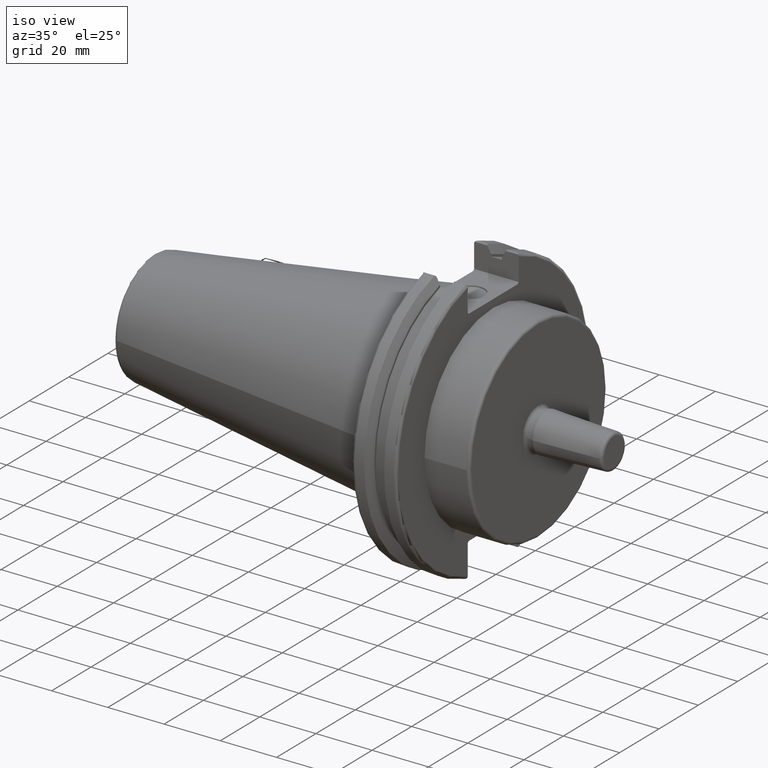
[diagram: clean part render]
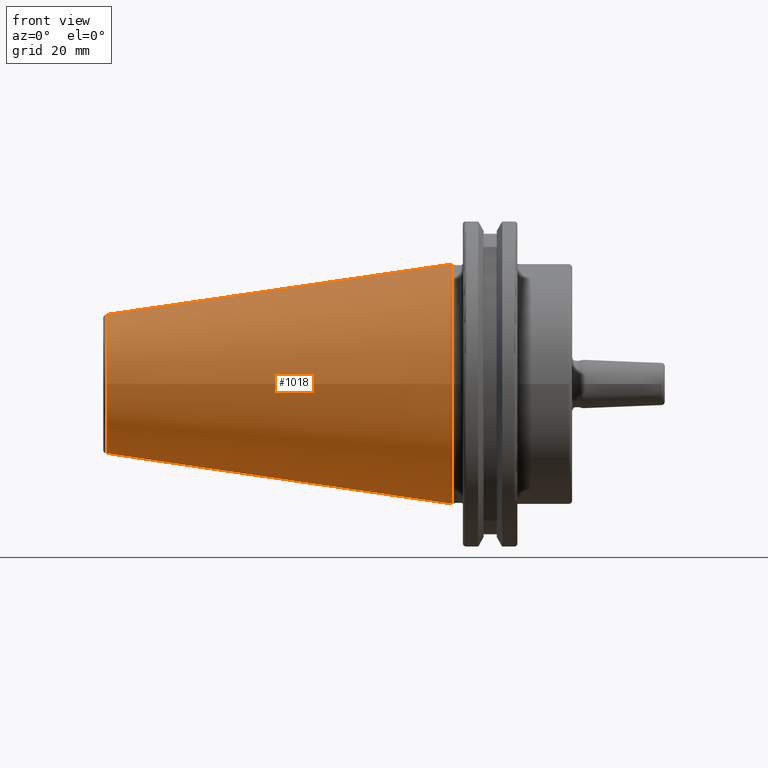
[diagram: tour spotlight — one face highlighted and labeled with its STEP entity id]
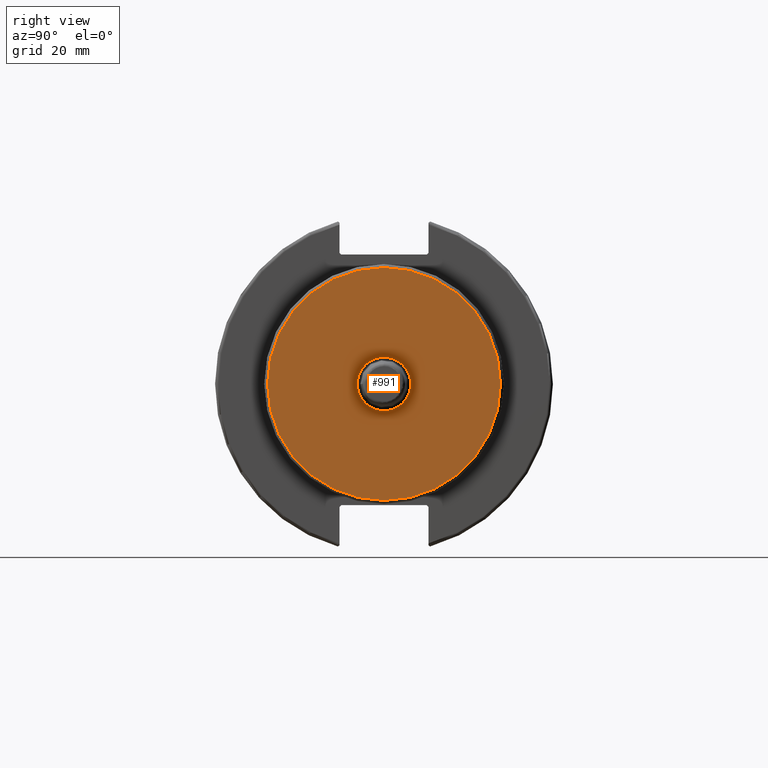
[diagram: tour spotlight — one face highlighted and labeled with its STEP entity id]
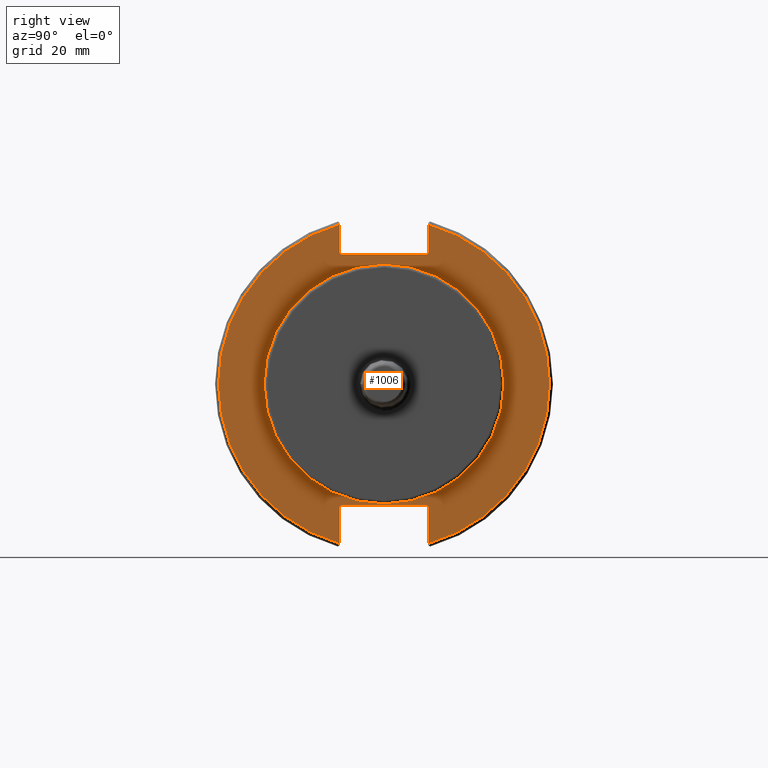
[diagram: tour spotlight — one face highlighted and labeled with its STEP entity id]
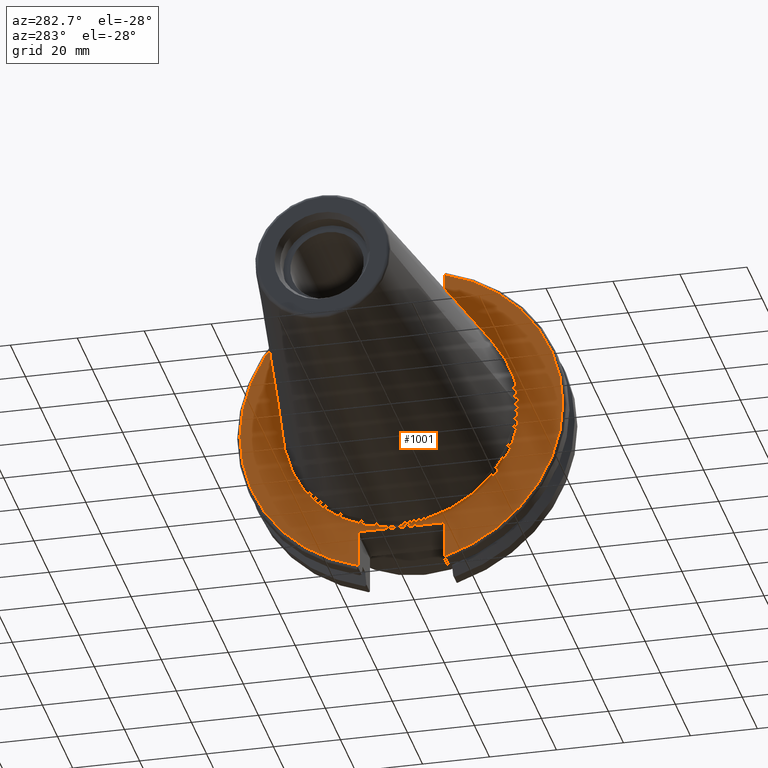
[diagram: tour spotlight — one face highlighted and labeled with its STEP entity id]
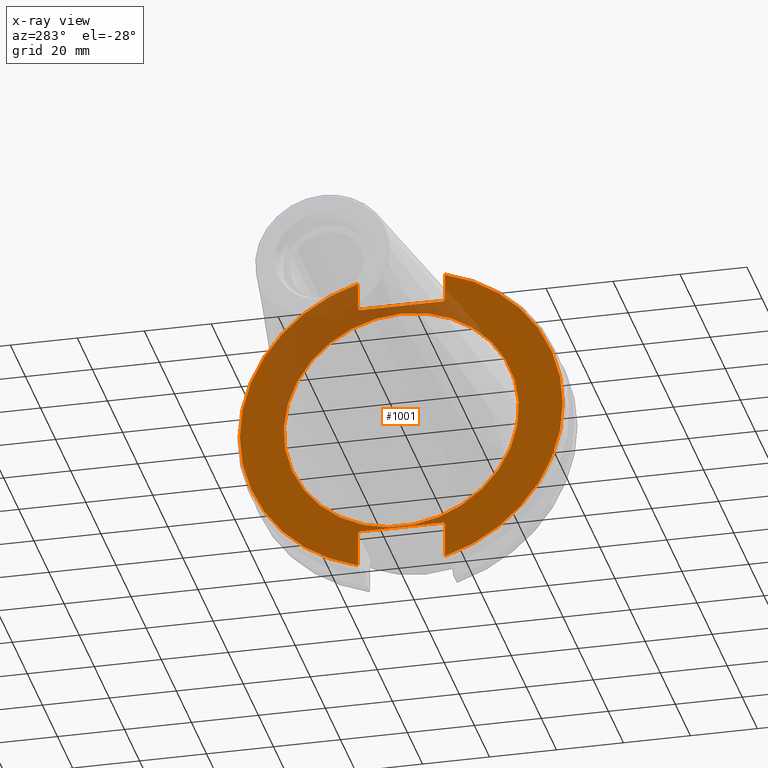
[diagram: x-ray of the same camera — body ghosted, this tour face saturated]
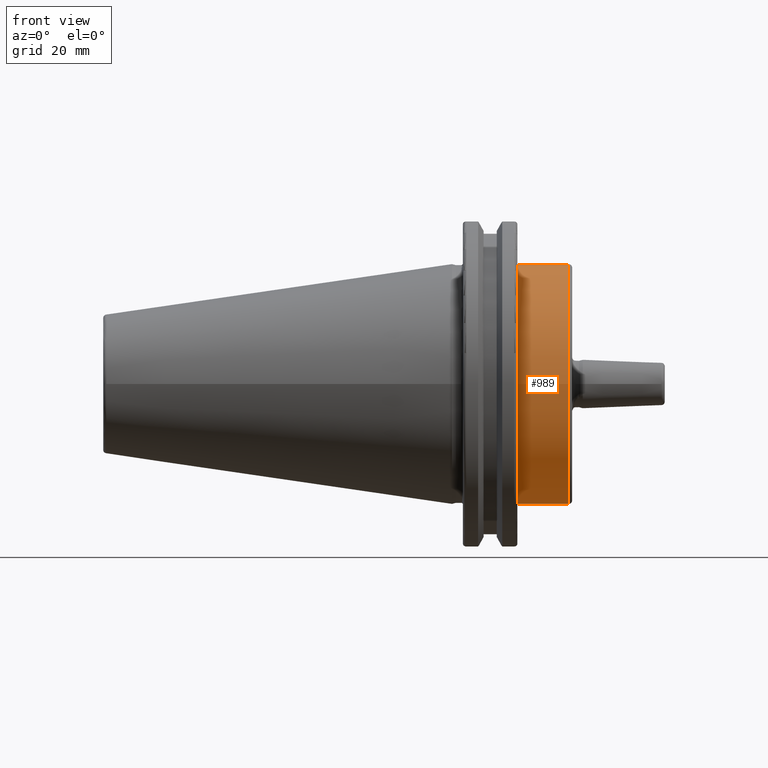
[diagram: tour spotlight — one face highlighted and labeled with its STEP entity id]
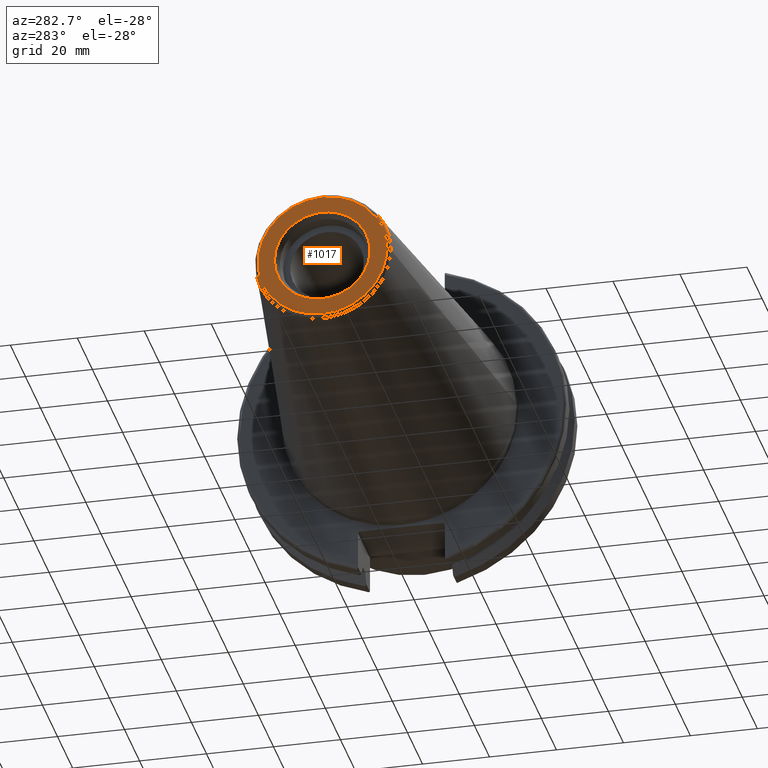
[diagram: tour spotlight — one face highlighted and labeled with its STEP entity id]
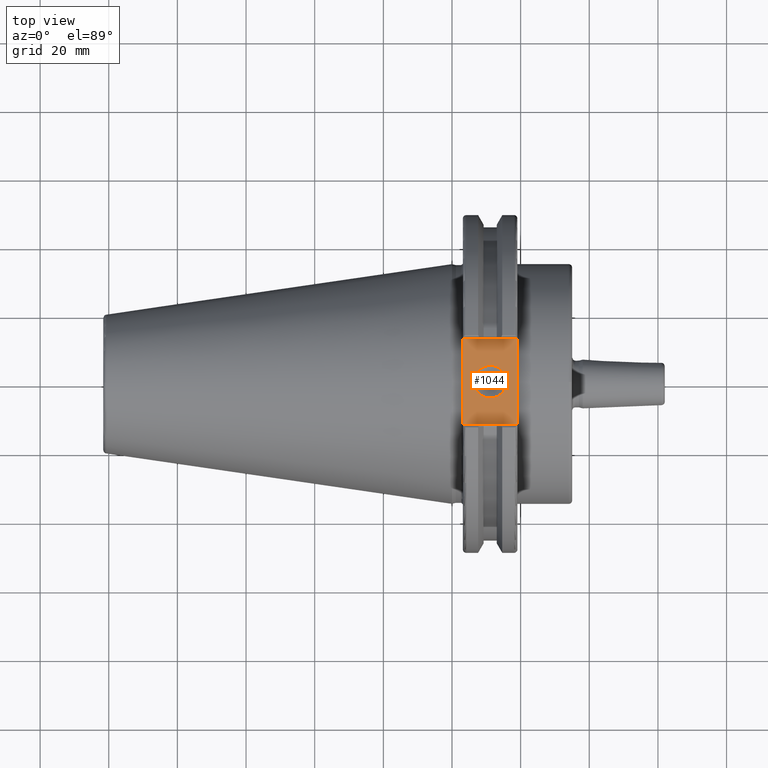
[diagram: tour spotlight — one face highlighted and labeled with its STEP entity id]
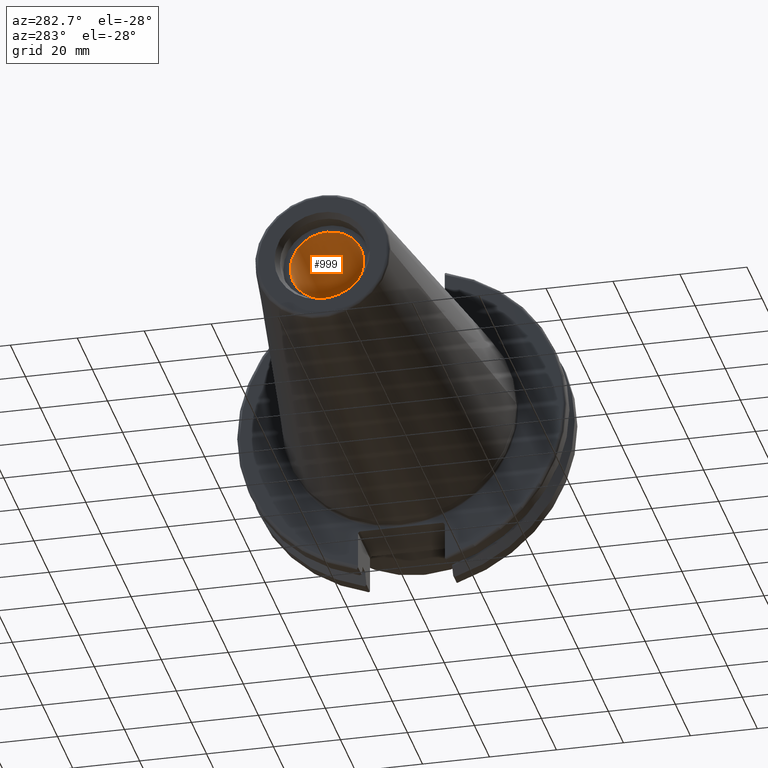
[diagram: tour spotlight — one face highlighted and labeled with its STEP entity id]
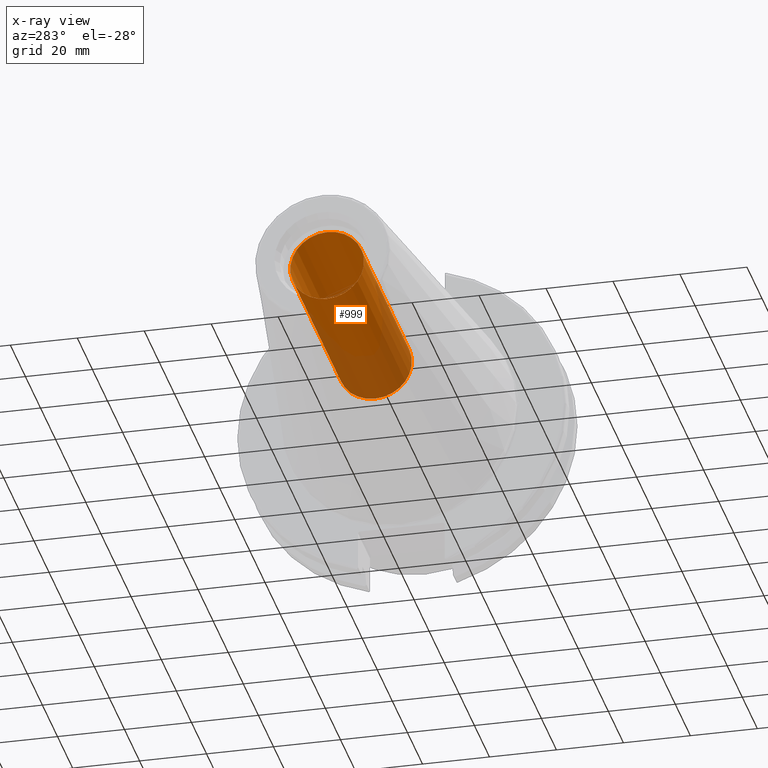
[diagram: x-ray of the same camera — body ghosted, this tour face saturated]
A machine part: a face-by-face anatomy tour. The part has 60 B-rep faces; the first image is the clean iso view, then the 8 largest visible faces are spotlighted one at a time (largest first), each with its STEP entity span.

Face 1 — front view, entity #1018. In plain terms, the highlighted conical surface has half-angle 8.297 deg.
Definition (entity closure, byte-faithful):
#50=CONICAL_SURFACE('',#1137,27.5166666666666,0.14481249823894);
#130=FACE_OUTER_BOUND('',#194,.T.);
#194=EDGE_LOOP('',(#838,#839,#840,#841,#842));
#276=LINE('',#1824,#345);
#345=VECTOR('',#1369,27.5166666666666);
#396=CIRCLE('',#1131,20.233121911427);
#397=CIRCLE('',#1132,20.233121911427);
#401=CIRCLE('',#1138,34.925);
#498=VERTEX_POINT('',#1811);
#499=VERTEX_POINT('',#1812);
#502=VERTEX_POINT('',#1822);
#624=EDGE_CURVE('',#498,#499,#396,.T.);
#625=EDGE_CURVE('',#499,#498,#397,.T.);
#629=EDGE_CURVE('',#502,#502,#401,.T.);
#630=EDGE_CURVE('',#502,#499,#276,.T.);
#838=ORIENTED_EDGE('',*,*,#629,.F.);
#839=ORIENTED_EDGE('',*,*,#630,.T.);
#840=ORIENTED_EDGE('',*,*,#624,.F.);
#841=ORIENTED_EDGE('',*,*,#625,.F.);
#842=ORIENTED_EDGE('',*,*,#630,.F.);
#1018=ADVANCED_FACE('',(#130),#50,.T.);
#1131=AXIS2_PLACEMENT_3D('',#1813,#1353,#1354);
#1132=AXIS2_PLACEMENT_3D('',#1814,#1355,#1356);
#1137=AXIS2_PLACEMENT_3D('',#1821,#1365,#1366);
#1138=AXIS2_PLACEMENT_3D('',#1823,#1367,#1368);
#1353=DIRECTION('center_axis',(-1.,0.,0.));
#1354=DIRECTION('ref_axis',(0.,-1.,3.06161699786838E-17));
#1355=DIRECTION('center_axis',(-1.,0.,0.));
#1356=DIRECTION('ref_axis',(0.,-1.,3.06161699786838E-17));
#1365=DIRECTION('center_axis',(1.,0.,0.));
#1366=DIRECTION('ref_axis',(0.,1.,0.));
#1367=DIRECTION('center_axis',(1.,0.,0.));
#1368=DIRECTION('ref_axis',(0.,0.,-1.));
#1369=DIRECTION('',(-0.989532981063281,0.144306893071729,1.76724974695192E-17));
#1811=CARTESIAN_POINT('',(-100.744306893072,-2.47784279855872E-15,20.233121911427));
#1812=CARTESIAN_POINT('',(-100.744306893072,-20.233121911427,-2.47784279855872E-15));
#1813=CARTESIAN_POINT('Origin',(-100.744306893072,0.,-3.09730349819841E-15));
#1814=CARTESIAN_POINT('Origin',(-100.744306893072,0.,-3.09730349819841E-15));
#1821=CARTESIAN_POINT('Origin',(-50.8,0.,0.));
#1822=CARTESIAN_POINT('',(-8.88178419700125E-15,-34.925,-4.27707894602213E-15));
#1823=CARTESIAN_POINT('Origin',(0.,0.,0.));
#1824=CARTESIAN_POINT('',(-50.8,-27.5166666666666,-3.3698197756538E-15));

Face 2 — right view, entity #991. In plain terms, the highlighted planar face has unit normal (1, 0, 0).
Definition (entity closure, byte-faithful):
#58=FACE_BOUND('',#164,.T.);
#64=PLANE('',#1079);
#103=FACE_OUTER_BOUND('',#163,.T.);
#163=EDGE_LOOP('',(#681));
#164=EDGE_LOOP('',(#682));
#368=CIRCLE('',#1077,33.925);
#370=CIRCLE('',#1080,7.7995);
#420=VERTEX_POINT('',#1489);
#421=VERTEX_POINT('',#1493);
#522=EDGE_CURVE('',#420,#420,#368,.T.);
#524=EDGE_CURVE('',#421,#421,#370,.T.);
#681=ORIENTED_EDGE('',*,*,#522,.T.);
#682=ORIENTED_EDGE('',*,*,#524,.F.);
#991=ADVANCED_FACE('',(#103,#58),#64,.T.);
#1077=AXIS2_PLACEMENT_3D('',#1490,#1197,#1198);
#1079=AXIS2_PLACEMENT_3D('',#1492,#1201,#1202);
#1080=AXIS2_PLACEMENT_3D('',#1494,#1203,#1204);
#1197=DIRECTION('center_axis',(1.,0.,0.));
#1198=DIRECTION('ref_axis',(0.,0.,-1.));
#1201=DIRECTION('center_axis',(1.,0.,0.));
#1202=DIRECTION('ref_axis',(0.,0.,-1.));
#1203=DIRECTION('center_axis',(1.,0.,0.));
#1204=DIRECTION('ref_axis',(0.,0.,-1.));
#1489=CARTESIAN_POINT('',(35.,-4.15461426610739E-15,33.925));
#1490=CARTESIAN_POINT('Origin',(35.,0.,0.));
#1492=CARTESIAN_POINT('Origin',(35.,7.7995,0.));
#1493=CARTESIAN_POINT('',(35.,-9.55163270994979E-16,7.7995));
#1494=CARTESIAN_POINT('Origin',(35.,0.,0.));

Face 3 — right view, entity #1006. In plain terms, the highlighted planar face has unit normal (1, 0, 0).
Definition (entity closure, byte-faithful):
#60=FACE_BOUND('',#181,.T.);
#69=PLANE('',#1115);
#118=FACE_OUTER_BOUND('',#180,.T.);
#180=EDGE_LOOP('',(#760,#761,#762,#763,#764,#765,#766,#767,#768,#769,#770,
#771));
#181=EDGE_LOOP('',(#772));
#246=LINE('',#1613,#315);
#252=LINE('',#1639,#321);
#253=LINE('',#1641,#322);
#254=LINE('',#1643,#323);
#255=LINE('',#1645,#324);
#256=LINE('',#1647,#325);
#257=LINE('',#1651,#326);
#258=LINE('',#1653,#327);
#259=LINE('',#1655,#328);
#260=LINE('',#1656,#329);
#315=VECTOR('',#1291,10.);
#321=VECTOR('',#1299,10.);
#322=VECTOR('',#1300,10.);
#323=VECTOR('',#1301,10.);
#324=VECTOR('',#1302,10.);
#325=VECTOR('',#1303,10.);
#326=VECTOR('',#1306,10.);
#327=VECTOR('',#1307,10.);
#328=VECTOR('',#1308,10.);
#329=VECTOR('',#1309,10.);
#366=CIRCLE('',#1074,34.925);
#389=CIRCLE('',#1111,48.2125);
#391=CIRCLE('',#1116,48.2125);
#419=VERTEX_POINT('',#1484);
#449=VERTEX_POINT('',#1568);
#450=VERTEX_POINT('',#1575);
#456=VERTEX_POINT('',#1612);
#463=VERTEX_POINT('',#1638);
#464=VERTEX_POINT('',#1640);
#465=VERTEX_POINT('',#1642);
#466=VERTEX_POINT('',#1644);
#467=VERTEX_POINT('',#1646);
#468=VERTEX_POINT('',#1648);
#469=VERTEX_POINT('',#1650);
#470=VERTEX_POINT('',#1652);
#471=VERTEX_POINT('',#1654);
#520=EDGE_CURVE('',#419,#419,#366,.T.);
#560=EDGE_CURVE('',#449,#450,#389,.T.);
#568=EDGE_CURVE('',#456,#450,#246,.T.);
#577=EDGE_CURVE('',#449,#463,#252,.T.);
#578=EDGE_CURVE('',#464,#463,#253,.T.);
#579=EDGE_CURVE('',#464,#465,#254,.T.);
#580=EDGE_CURVE('',#466,#465,#255,.T.);
#581=EDGE_CURVE('',#466,#467,#256,.T.);
#582=EDGE_CURVE('',#468,#467,#391,.T.);
#583=EDGE_CURVE('',#468,#469,#257,.T.);
#584=EDGE_CURVE('',#470,#469,#258,.T.);
#585=EDGE_CURVE('',#470,#471,#259,.T.);
#586=EDGE_CURVE('',#456,#471,#260,.T.);
#760=ORIENTED_EDGE('',*,*,#560,.F.);
#761=ORIENTED_EDGE('',*,*,#577,.T.);
#762=ORIENTED_EDGE('',*,*,#578,.F.);
#763=ORIENTED_EDGE('',*,*,#579,.T.);
#764=ORIENTED_EDGE('',*,*,#580,.F.);
#765=ORIENTED_EDGE('',*,*,#581,.T.);
#766=ORIENTED_EDGE('',*,*,#582,.F.);
#767=ORIENTED_EDGE('',*,*,#583,.T.);
#768=ORIENTED_EDGE('',*,*,#584,.F.);
#769=ORIENTED_EDGE('',*,*,#585,.T.);
#770=ORIENTED_EDGE('',*,*,#586,.F.);
#771=ORIENTED_EDGE('',*,*,#568,.T.);
#772=ORIENTED_EDGE('',*,*,#520,.T.);
#1006=ADVANCED_FACE('',(#118,#60),#69,.T.);
#1074=AXIS2_PLACEMENT_3D('',#1486,#1191,#1192);
#1111=AXIS2_PLACEMENT_3D('',#1576,#1281,#1282);
#1115=AXIS2_PLACEMENT_3D('',#1637,#1297,#1298);
#1116=AXIS2_PLACEMENT_3D('',#1649,#1304,#1305);
#1191=DIRECTION('center_axis',(-1.,0.,0.));
#1192=DIRECTION('ref_axis',(0.,1.,0.));
#1281=DIRECTION('center_axis',(-1.,0.,0.));
#1282=DIRECTION('ref_axis',(0.,1.,-6.12323399573677E-17));
#1291=DIRECTION('',(0.,0.,-1.));
#1297=DIRECTION('center_axis',(1.,0.,0.));
#1298=DIRECTION('ref_axis',(0.,0.,-1.));
#1299=DIRECTION('',(0.,0.,-1.));
#1300=DIRECTION('',(0.,0.707106781186549,0.707106781186546));
#1301=DIRECTION('',(0.,-1.,0.));
#1302=DIRECTION('',(0.,0.707106781186549,-0.707106781186546));
#1303=DIRECTION('',(0.,0.,1.));
#1304=DIRECTION('center_axis',(-1.,0.,0.));
#1305=DIRECTION('ref_axis',(0.,-1.,1.60812264967664E-16));
#1306=DIRECTION('',(0.,0.,1.));
#1307=DIRECTION('',(0.,-0.707106781186549,-0.707106781186546));
#1308=DIRECTION('',(0.,1.,0.));
#1309=DIRECTION('',(0.,-0.707106781186549,0.707106781186546));
#1484=CARTESIAN_POINT('',(19.05,-34.925,-4.27707894602213E-15));
#1486=CARTESIAN_POINT('Origin',(19.05,0.,0.));
#1568=CARTESIAN_POINT('',(19.05,12.95,46.4407434937254));
#1575=CARTESIAN_POINT('',(19.05,12.95,-46.4407434937254));
#1576=CARTESIAN_POINT('Origin',(19.05,0.,0.));
#1612=CARTESIAN_POINT('',(19.05,12.95,-35.806));
#1613=CARTESIAN_POINT('',(19.05,12.95,-17.653));
#1637=CARTESIAN_POINT('Origin',(19.05,0.,0.));
#1638=CARTESIAN_POINT('',(19.05,12.95,38.219));
#1639=CARTESIAN_POINT('',(19.05,12.95,18.8595));
#1640=CARTESIAN_POINT('',(19.05,12.45,37.719));
#1641=CARTESIAN_POINT('',(19.05,0.0327499999999836,25.30175));
#1642=CARTESIAN_POINT('',(19.05,-12.45,37.719));
#1643=CARTESIAN_POINT('',(19.05,0.,37.719));
#1644=CARTESIAN_POINT('',(19.05,-12.95,38.219));
#1645=CARTESIAN_POINT('',(19.05,-0.0327499999999817,25.30175));
#1646=CARTESIAN_POINT('',(19.05,-12.95,46.4407434937254));
#1647=CARTESIAN_POINT('',(19.05,-12.95,18.8595));
#1648=CARTESIAN_POINT('',(19.05,-12.95,-46.4407434937254));
#1649=CARTESIAN_POINT('Origin',(19.05,0.,0.));
#1650=CARTESIAN_POINT('',(19.05,-12.95,-35.806));
#1651=CARTESIAN_POINT('',(19.05,-12.95,-17.653));
#1652=CARTESIAN_POINT('',(19.05,-12.45,-35.306));
#1653=CARTESIAN_POINT('',(19.05,-0.635999999999989,-23.492));
#1654=CARTESIAN_POINT('',(19.05,12.45,-35.306));
#1655=CARTESIAN_POINT('',(19.05,-3.33066907387547E-15,-35.306));
#1656=CARTESIAN_POINT('',(19.05,0.635999999999982,-23.492));

Face 4 — auxiliary view, entity #1001. An x-ray twin of the same camera follows (body ghosted, this face saturated) — the face is partly hidden behind the body. In plain terms, the highlighted planar face has unit normal (-1, 0, 0).
Definition (entity closure, byte-faithful):
#59=FACE_BOUND('',#175,.T.);
#66=PLANE('',#1105);
#113=FACE_OUTER_BOUND('',#174,.T.);
#174=EDGE_LOOP('',(#720,#721,#722,#723,#724,#725,#726,#727,#728,#729,#730,
#731));
#175=EDGE_LOOP('',(#732));
#233=LINE('',#1542,#302);
#234=LINE('',#1544,#303);
#235=LINE('',#1546,#304);
#236=LINE('',#1548,#305);
#237=LINE('',#1550,#306);
#238=LINE('',#1554,#307);
#239=LINE('',#1556,#308);
#240=LINE('',#1558,#309);
#241=LINE('',#1560,#310);
#242=LINE('',#1561,#311);
#302=VECTOR('',#1262,10.);
#303=VECTOR('',#1263,10.);
#304=VECTOR('',#1264,10.);
#305=VECTOR('',#1265,10.);
#306=VECTOR('',#1266,10.);
#307=VECTOR('',#1269,10.);
#308=VECTOR('',#1270,10.);
#309=VECTOR('',#1271,10.);
#310=VECTOR('',#1272,10.);
#311=VECTOR('',#1273,10.);
#384=CIRCLE('',#1103,35.125);
#386=CIRCLE('',#1106,48.2125);
#387=CIRCLE('',#1107,48.2125);
#434=VERTEX_POINT('',#1533);
#435=VERTEX_POINT('',#1538);
#436=VERTEX_POINT('',#1539);
#437=VERTEX_POINT('',#1541);
#438=VERTEX_POINT('',#1543);
#439=VERTEX_POINT('',#1545);
#440=VERTEX_POINT('',#1547);
#441=VERTEX_POINT('',#1549);
#442=VERTEX_POINT('',#1551);
#443=VERTEX_POINT('',#1553);
#444=VERTEX_POINT('',#1555);
#445=VERTEX_POINT('',#1557);
#446=VERTEX_POINT('',#1559);
#543=EDGE_CURVE('',#434,#434,#384,.T.);
#545=EDGE_CURVE('',#435,#436,#386,.T.);
#546=EDGE_CURVE('',#435,#437,#233,.T.);
#547=EDGE_CURVE('',#438,#437,#234,.T.);
#548=EDGE_CURVE('',#438,#439,#235,.T.);
#549=EDGE_CURVE('',#440,#439,#236,.T.);
#550=EDGE_CURVE('',#440,#441,#237,.T.);
#551=EDGE_CURVE('',#442,#441,#387,.T.);
#552=EDGE_CURVE('',#442,#443,#238,.T.);
#553=EDGE_CURVE('',#444,#443,#239,.T.);
#554=EDGE_CURVE('',#444,#445,#240,.T.);
#555=EDGE_CURVE('',#446,#445,#241,.T.);
#556=EDGE_CURVE('',#446,#436,#242,.T.);
#720=ORIENTED_EDGE('',*,*,#545,.F.);
#721=ORIENTED_EDGE('',*,*,#546,.T.);
#722=ORIENTED_EDGE('',*,*,#547,.F.);
#723=ORIENTED_EDGE('',*,*,#548,.T.);
#724=ORIENTED_EDGE('',*,*,#549,.F.);
#725=ORIENTED_EDGE('',*,*,#550,.T.);
#726=ORIENTED_EDGE('',*,*,#551,.F.);
#727=ORIENTED_EDGE('',*,*,#552,.T.);
#728=ORIENTED_EDGE('',*,*,#553,.F.);
#729=ORIENTED_EDGE('',*,*,#554,.T.);
#730=ORIENTED_EDGE('',*,*,#555,.F.);
#731=ORIENTED_EDGE('',*,*,#556,.T.);
#732=ORIENTED_EDGE('',*,*,#543,.F.);
#1001=ADVANCED_FACE('',(#113,#59),#66,.T.);
#1103=AXIS2_PLACEMENT_3D('',#1535,#1254,#1255);
#1105=AXIS2_PLACEMENT_3D('',#1537,#1258,#1259);
#1106=AXIS2_PLACEMENT_3D('',#1540,#1260,#1261);
#1107=AXIS2_PLACEMENT_3D('',#1552,#1267,#1268);
#1254=DIRECTION('center_axis',(-1.,0.,0.));
#1255=DIRECTION('ref_axis',(0.,-1.,1.83697019872103E-16));
#1258=DIRECTION('center_axis',(-1.,0.,0.));
#1259=DIRECTION('ref_axis',(0.,0.,1.));
#1260=DIRECTION('center_axis',(1.,0.,0.));
#1261=DIRECTION('ref_axis',(0.,-1.,1.60812264967664E-16));
#1262=DIRECTION('',(0.,0.,-1.));
#1263=DIRECTION('',(0.,-0.707106781186549,0.707106781186546));
#1264=DIRECTION('',(0.,1.,0.));
#1265=DIRECTION('',(0.,-0.707106781186549,-0.707106781186546));
#1266=DIRECTION('',(0.,0.,1.));
#1267=DIRECTION('center_axis',(1.,0.,0.));
#1268=DIRECTION('ref_axis',(0.,1.,-6.12323399573677E-17));
#1269=DIRECTION('',(0.,0.,1.));
#1270=DIRECTION('',(0.,0.707106781186549,-0.707106781186546));
#1271=DIRECTION('',(0.,-1.,0.));
#1272=DIRECTION('',(0.,0.707106781186549,0.707106781186546));
#1273=DIRECTION('',(0.,0.,-1.));
#1533=CARTESIAN_POINT('',(3.175,-4.30157188200508E-15,35.125));
#1535=CARTESIAN_POINT('Origin',(3.175,0.,0.));
#1537=CARTESIAN_POINT('Origin',(3.175,49.2125,0.));
#1538=CARTESIAN_POINT('',(3.175,-12.95,46.4407434937254));
#1539=CARTESIAN_POINT('',(3.175,-12.95,-46.4407434937254));
#1540=CARTESIAN_POINT('Origin',(3.175,0.,0.));
#1541=CARTESIAN_POINT('',(3.175,-12.95,38.219));
#1542=CARTESIAN_POINT('',(3.175,-12.95,18.8595));
#1543=CARTESIAN_POINT('',(3.175,-12.45,37.719));
#1544=CARTESIAN_POINT('',(3.175,12.2703750000001,12.998625));
#1545=CARTESIAN_POINT('',(3.175,12.45,37.719));
#1546=CARTESIAN_POINT('',(3.175,24.60625,37.719));
#1547=CARTESIAN_POINT('',(3.175,12.95,38.219));
#1548=CARTESIAN_POINT('',(3.175,12.335875,37.604875));
#1549=CARTESIAN_POINT('',(3.175,12.95,46.4407434937254));
#1550=CARTESIAN_POINT('',(3.175,12.95,18.8595));
#1551=CARTESIAN_POINT('',(3.175,12.95,-46.4407434937254));
#1552=CARTESIAN_POINT('Origin',(3.175,0.,0.));
#1553=CARTESIAN_POINT('',(3.175,12.95,-35.806));
#1554=CARTESIAN_POINT('',(3.175,12.95,-17.653));
#1555=CARTESIAN_POINT('',(3.175,12.45,-35.306));
#1556=CARTESIAN_POINT('',(3.175,12.939125,-35.795125));
#1557=CARTESIAN_POINT('',(3.175,-12.45,-35.306));
#1558=CARTESIAN_POINT('',(3.175,24.60625,-35.306));
#1559=CARTESIAN_POINT('',(3.175,-12.95,-35.806));
#1560=CARTESIAN_POINT('',(3.175,11.6671250000001,-11.188875));
#1561=CARTESIAN_POINT('',(3.175,-12.95,-17.653));

Face 5 — front view, entity #989. In plain terms, the highlighted cylindrical surface (bore or boss wall) has radius 34.925 mm, axis along (1, 0, 0).
Definition (entity closure, byte-faithful):
#101=FACE_OUTER_BOUND('',#161,.T.);
#161=EDGE_LOOP('',(#671,#672,#673,#674,#675));
#227=LINE('',#1485,#296);
#296=VECTOR('',#1190,34.925);
#365=CIRCLE('',#1073,34.925);
#366=CIRCLE('',#1074,34.925);
#367=CIRCLE('',#1075,34.925);
#417=VERTEX_POINT('',#1481);
#418=VERTEX_POINT('',#1482);
#419=VERTEX_POINT('',#1484);
#518=EDGE_CURVE('',#417,#418,#365,.T.);
#519=EDGE_CURVE('',#417,#419,#227,.T.);
#520=EDGE_CURVE('',#419,#419,#366,.T.);
#521=EDGE_CURVE('',#418,#417,#367,.T.);
#671=ORIENTED_EDGE('',*,*,#518,.F.);
#672=ORIENTED_EDGE('',*,*,#519,.T.);
#673=ORIENTED_EDGE('',*,*,#520,.F.);
#674=ORIENTED_EDGE('',*,*,#519,.F.);
#675=ORIENTED_EDGE('',*,*,#521,.F.);
#977=CYLINDRICAL_SURFACE('',#1072,34.925);
#989=ADVANCED_FACE('',(#101),#977,.T.);
#1072=AXIS2_PLACEMENT_3D('',#1480,#1186,#1187);
#1073=AXIS2_PLACEMENT_3D('',#1483,#1188,#1189);
#1074=AXIS2_PLACEMENT_3D('',#1486,#1191,#1192);
#1075=AXIS2_PLACEMENT_3D('',#1487,#1193,#1194);
#1186=DIRECTION('center_axis',(1.,0.,0.));
#1187=DIRECTION('ref_axis',(0.,1.,0.));
#1188=DIRECTION('center_axis',(1.,0.,0.));
#1189=DIRECTION('ref_axis',(0.,0.,-1.));
#1190=DIRECTION('',(-1.,0.,0.));
#1191=DIRECTION('center_axis',(-1.,0.,0.));
#1192=DIRECTION('ref_axis',(0.,1.,0.));
#1193=DIRECTION('center_axis',(1.,0.,0.));
#1194=DIRECTION('ref_axis',(0.,0.,-1.));
#1480=CARTESIAN_POINT('Origin',(26.525,0.,0.));
#1481=CARTESIAN_POINT('',(34.,-34.925,-4.27707894602213E-15));
#1482=CARTESIAN_POINT('',(34.,-4.27707894602213E-15,34.925));
#1483=CARTESIAN_POINT('Origin',(34.,0.,0.));
#1484=CARTESIAN_POINT('',(19.05,-34.925,-4.27707894602213E-15));
#1485=CARTESIAN_POINT('',(26.525,-34.925,-4.27707894602213E-15));
#1486=CARTESIAN_POINT('Origin',(19.05,0.,0.));
#1487=CARTESIAN_POINT('Origin',(34.,0.,0.));

Face 6 — auxiliary view, entity #1017. In plain terms, the highlighted planar face has unit normal (-1, 0, 0).
Definition (entity closure, byte-faithful):
#61=FACE_BOUND('',#193,.T.);
#75=PLANE('',#1135);
#129=FACE_OUTER_BOUND('',#192,.T.);
#192=EDGE_LOOP('',(#836));
#193=EDGE_LOOP('',(#837));
#399=CIRCLE('',#1134,19.2435889303637);
#400=CIRCLE('',#1136,14.2875);
#500=VERTEX_POINT('',#1815);
#501=VERTEX_POINT('',#1819);
#627=EDGE_CURVE('',#500,#500,#399,.T.);
#628=EDGE_CURVE('',#501,#501,#400,.T.);
#836=ORIENTED_EDGE('',*,*,#627,.F.);
#837=ORIENTED_EDGE('',*,*,#628,.T.);
#1017=ADVANCED_FACE('',(#129,#61),#75,.T.);
#1134=AXIS2_PLACEMENT_3D('',#1817,#1359,#1360);
#1135=AXIS2_PLACEMENT_3D('',#1818,#1361,#1362);
#1136=AXIS2_PLACEMENT_3D('',#1820,#1363,#1364);
#1359=DIRECTION('center_axis',(1.,0.,0.));
#1360=DIRECTION('ref_axis',(0.,-1.,1.83697019872103E-16));
#1361=DIRECTION('center_axis',(-1.,0.,0.));
#1362=DIRECTION('ref_axis',(0.,0.,1.));
#1363=DIRECTION('center_axis',(1.,0.,0.));
#1364=DIRECTION('ref_axis',(0.,0.,-1.));
#1815=CARTESIAN_POINT('',(-101.6,-2.35665995876774E-15,19.2435889303637));
#1817=CARTESIAN_POINT('Origin',(-101.6,0.,0.));
#1818=CARTESIAN_POINT('Origin',(-101.6,20.1083333333333,0.));
#1819=CARTESIAN_POINT('',(-101.6,-14.2875,-1.74971411428178E-15));
#1820=CARTESIAN_POINT('Origin',(-101.6,0.,0.));

Face 7 — top view, entity #1044. In plain terms, the highlighted planar face has unit normal (0, 0, 1).
Definition (entity closure, byte-faithful):
#62=FACE_BOUND('',#221,.T.);
#90=PLANE('',#1177);
#156=FACE_OUTER_BOUND('',#220,.T.);
#220=EDGE_LOOP('',(#958,#959,#960,#961));
#221=EDGE_LOOP('',(#962));
#235=LINE('',#1546,#304);
#254=LINE('',#1643,#323);
#279=LINE('',#1831,#348);
#281=LINE('',#1834,#350);
#304=VECTOR('',#1264,10.);
#323=VECTOR('',#1301,10.);
#348=VECTOR('',#1380,10.);
#350=VECTOR('',#1384,10.);
#407=CIRCLE('',#1160,4.7625);
#438=VERTEX_POINT('',#1543);
#439=VERTEX_POINT('',#1545);
#464=VERTEX_POINT('',#1640);
#465=VERTEX_POINT('',#1642);
#515=VERTEX_POINT('',#1891);
#548=EDGE_CURVE('',#438,#439,#235,.T.);
#579=EDGE_CURVE('',#464,#465,#254,.T.);
#633=EDGE_CURVE('',#465,#438,#279,.T.);
#635=EDGE_CURVE('',#439,#464,#281,.T.);
#657=EDGE_CURVE('',#515,#515,#407,.T.);
#958=ORIENTED_EDGE('',*,*,#633,.F.);
#959=ORIENTED_EDGE('',*,*,#579,.F.);
#960=ORIENTED_EDGE('',*,*,#635,.F.);
#961=ORIENTED_EDGE('',*,*,#548,.F.);
#962=ORIENTED_EDGE('',*,*,#657,.T.);
#1044=ADVANCED_FACE('',(#156,#62),#90,.T.);
#1160=AXIS2_PLACEMENT_3D('',#1892,#1427,#1428);
#1177=AXIS2_PLACEMENT_3D('',#1910,#1462,#1463);
#1264=DIRECTION('',(0.,1.,0.));
#1301=DIRECTION('',(0.,-1.,0.));
#1380=DIRECTION('',(-1.,1.31581988103722E-16,0.));
#1384=DIRECTION('',(1.,0.,0.));
#1427=DIRECTION('center_axis',(0.,0.,-1.));
#1428=DIRECTION('ref_axis',(1.,0.,0.));
#1462=DIRECTION('center_axis',(0.,0.,1.));
#1463=DIRECTION('ref_axis',(1.,0.,0.));
#1543=CARTESIAN_POINT('',(3.175,-12.45,37.719));
#1545=CARTESIAN_POINT('',(3.175,12.45,37.719));
#1546=CARTESIAN_POINT('',(3.175,24.60625,37.719));
#1640=CARTESIAN_POINT('',(19.05,12.45,37.719));
#1642=CARTESIAN_POINT('',(19.05,-12.45,37.719));
#1643=CARTESIAN_POINT('',(19.05,0.,37.719));
#1831=CARTESIAN_POINT('',(10.63125,-12.45,37.719));
#1834=CARTESIAN_POINT('',(19.06875,12.45,37.719));
#1891=CARTESIAN_POINT('',(6.36479999999999,-5.83238038093927E-16,37.719));
#1892=CARTESIAN_POINT('Origin',(11.1273,0.,37.719));
#1910=CARTESIAN_POINT('Origin',(18.0875,0.,37.719));

Face 8 — auxiliary view, entity #999. An x-ray twin of the same camera follows (body ghosted, this face saturated) — the face is partly hidden behind the body. In plain terms, the highlighted cylindrical surface (bore or boss wall) has radius 10.9855 mm, axis along (-1, 0, 0).
Definition (entity closure, byte-faithful):
#111=FACE_OUTER_BOUND('',#172,.T.);
#172=EDGE_LOOP('',(#711,#712,#713,#714));
#232=LINE('',#1528,#301);
#301=VECTOR('',#1247,10.9855);
#380=CIRCLE('',#1097,10.9855);
#381=CIRCLE('',#1099,10.9855);
#429=VERTEX_POINT('',#1521);
#431=VERTEX_POINT('',#1526);
#537=EDGE_CURVE('',#429,#429,#380,.T.);
#539=EDGE_CURVE('',#431,#431,#381,.T.);
#540=EDGE_CURVE('',#431,#429,#232,.T.);
#711=ORIENTED_EDGE('',*,*,#539,.F.);
#712=ORIENTED_EDGE('',*,*,#540,.T.);
#713=ORIENTED_EDGE('',*,*,#537,.F.);
#714=ORIENTED_EDGE('',*,*,#540,.F.);
#979=CYLINDRICAL_SURFACE('',#1098,10.9855);
#999=ADVANCED_FACE('',(#111),#979,.F.);
#1097=AXIS2_PLACEMENT_3D('',#1522,#1240,#1241);
#1098=AXIS2_PLACEMENT_3D('',#1525,#1243,#1244);
#1099=AXIS2_PLACEMENT_3D('',#1527,#1245,#1246);
#1240=DIRECTION('center_axis',(-1.,0.,0.));
#1241=DIRECTION('ref_axis',(0.,0.,1.));
#1243=DIRECTION('center_axis',(-1.,0.,0.));
#1244=DIRECTION('ref_axis',(0.,0.,1.));
#1245=DIRECTION('center_axis',(1.,0.,0.));
#1246=DIRECTION('ref_axis',(0.,0.,1.));
#1247=DIRECTION('',(1.,0.,0.));
#1521=CARTESIAN_POINT('',(-31.6,-1.34533574120333E-15,-10.9855));
#1522=CARTESIAN_POINT('Origin',(-31.6,0.,0.));
#1525=CARTESIAN_POINT('Origin',(-66.6,0.,0.));
#1526=CARTESIAN_POINT('',(-95.25,1.34533574120333E-15,-10.9855));
#1527=CARTESIAN_POINT('Origin',(-95.25,0.,0.));
#1528=CARTESIAN_POINT('',(-66.6,-1.34533574120333E-15,-10.9855));